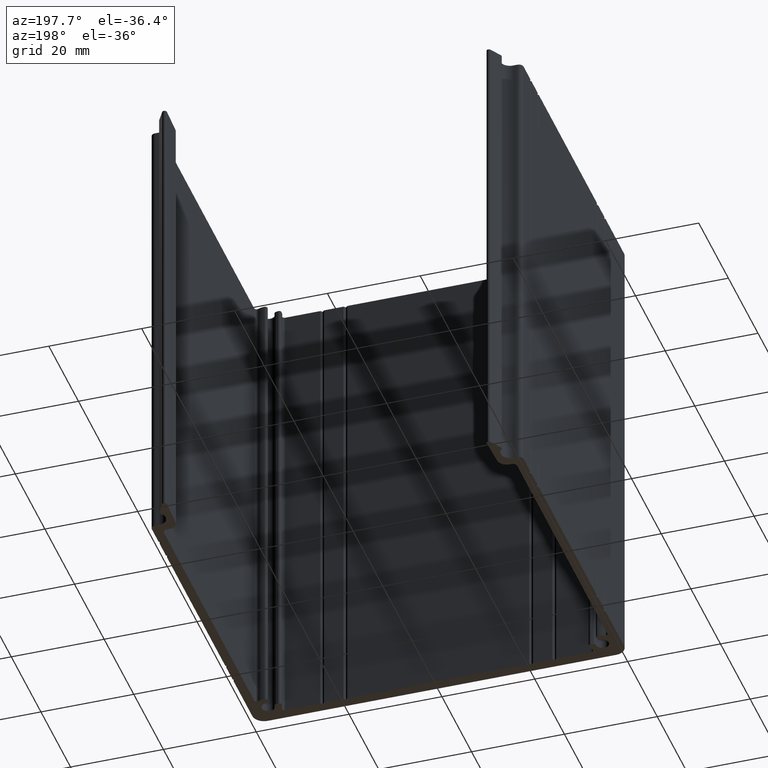
[diagram: clean part render]
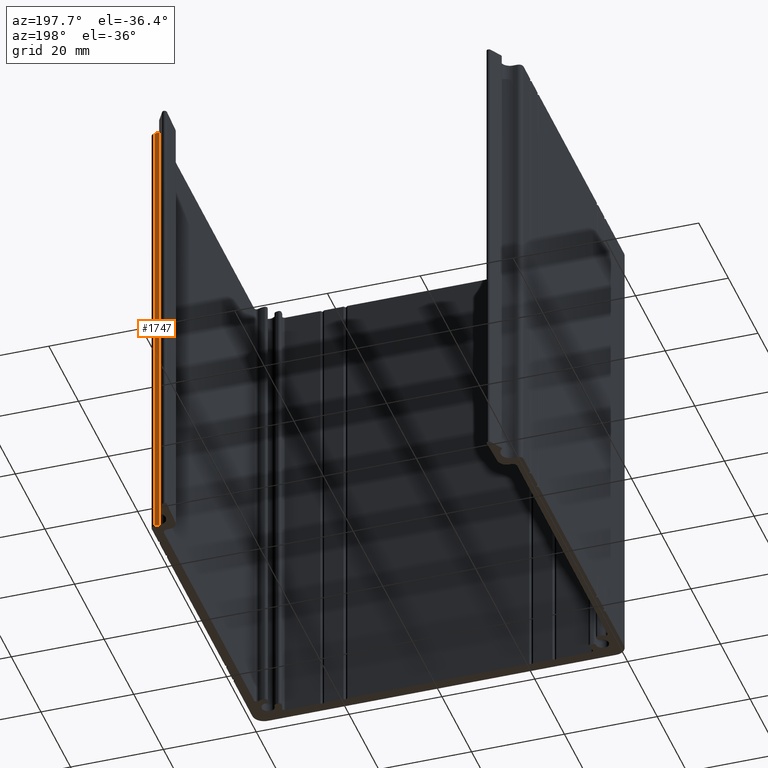
[diagram: same view with one face highlighted and labeled with its STEP entity id]
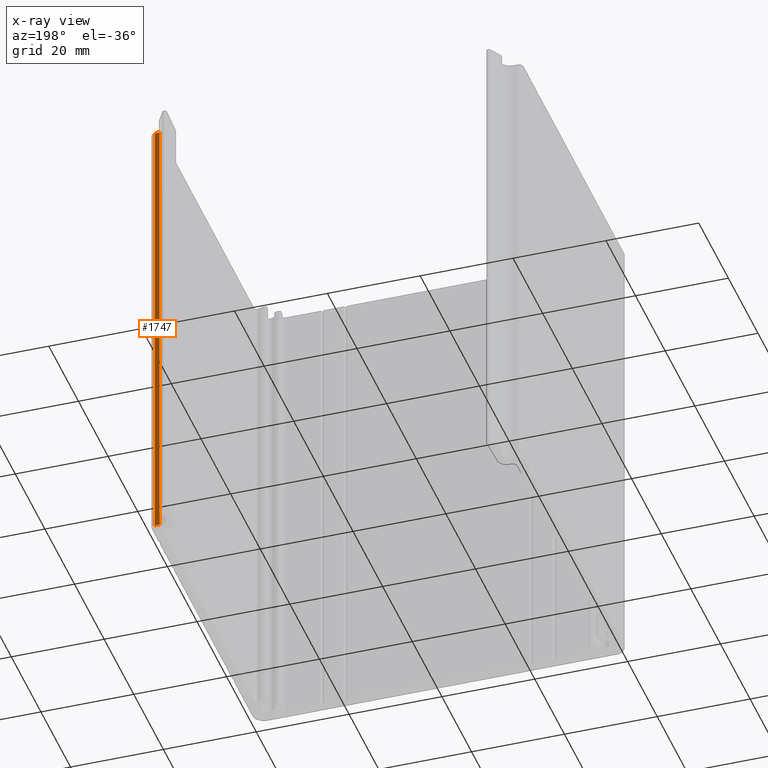
[diagram: x-ray of the same camera — body ghosted, the highlighted face saturated]
A machine part, auxiliary view. The second image highlights one B-rep face of the part: STEP entity #1747.
The next image is the same camera in x-ray: the body ghosted, the highlighted face saturated — about 0% of this face is hidden behind the body in this view.
In plain terms, the highlighted planar face has unit normal (0, 1, 0).
Its self-contained STEP definition (entity closure, byte-faithful):
#181=FACE_OUTER_BOUND('',#269,.T.);
#269=EDGE_LOOP('',(#1385,#1386,#1387,#1388));
#437=LINE('',#2863,#631);
#438=LINE('',#2866,#632);
#439=LINE('',#2868,#633);
#440=LINE('',#2869,#634);
#631=VECTOR('',#2352,10.);
#632=VECTOR('',#2355,10.);
#633=VECTOR('',#2356,10.);
#634=VECTOR('',#2357,10.);
#815=VERTEX_POINT('',#2859);
#816=VERTEX_POINT('',#2861);
#817=VERTEX_POINT('',#2865);
#818=VERTEX_POINT('',#2867);
#1057=EDGE_CURVE('',#815,#816,#437,.T.);
#1058=EDGE_CURVE('',#817,#815,#438,.T.);
#1059=EDGE_CURVE('',#818,#816,#439,.T.);
#1060=EDGE_CURVE('',#817,#818,#440,.T.);
#1385=ORIENTED_EDGE('',*,*,#1058,.T.);
#1386=ORIENTED_EDGE('',*,*,#1057,.T.);
#1387=ORIENTED_EDGE('',*,*,#1059,.F.);
#1388=ORIENTED_EDGE('',*,*,#1060,.F.);
#1661=PLANE('',#1918);
#1747=ADVANCED_FACE('',(#181),#1661,.T.);
#1918=AXIS2_PLACEMENT_3D('',#2864,#2353,#2354);
#2352=DIRECTION('',(0.,0.,1.));
#2353=DIRECTION('center_axis',(3.99680288865691E-13,1.,0.));
#2354=DIRECTION('ref_axis',(-1.,3.99680288865691E-13,0.));
#2355=DIRECTION('',(-1.,3.99680288865691E-13,0.));
#2356=DIRECTION('',(-1.,3.99680288865691E-13,0.));
#2357=DIRECTION('',(0.,0.,1.));
#2859=CARTESIAN_POINT('',(38.035795971551,71.3633043838319,0.));
#2861=CARTESIAN_POINT('',(38.035795971551,71.3633043838319,100.));
#2863=CARTESIAN_POINT('',(38.035795971551,71.3633043838319,0.));
#2864=CARTESIAN_POINT('Origin',(39.0357959715494,71.3633043838315,0.));
#2865=CARTESIAN_POINT('',(39.0357959715494,71.3633043838315,0.));
#2866=CARTESIAN_POINT('',(39.0357959715494,71.3633043838315,0.));
#2867=CARTESIAN_POINT('',(39.0357959715494,71.3633043838315,100.));
#2868=CARTESIAN_POINT('',(39.0357959715494,71.3633043838315,100.));
#2869=CARTESIAN_POINT('',(39.0357959715494,71.3633043838315,0.));